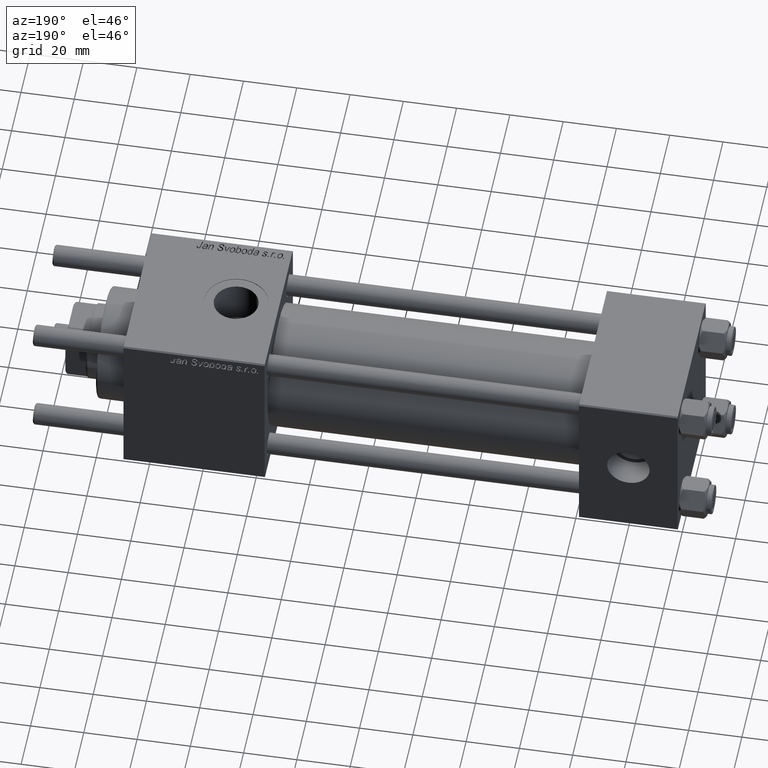
[diagram: clean part render]
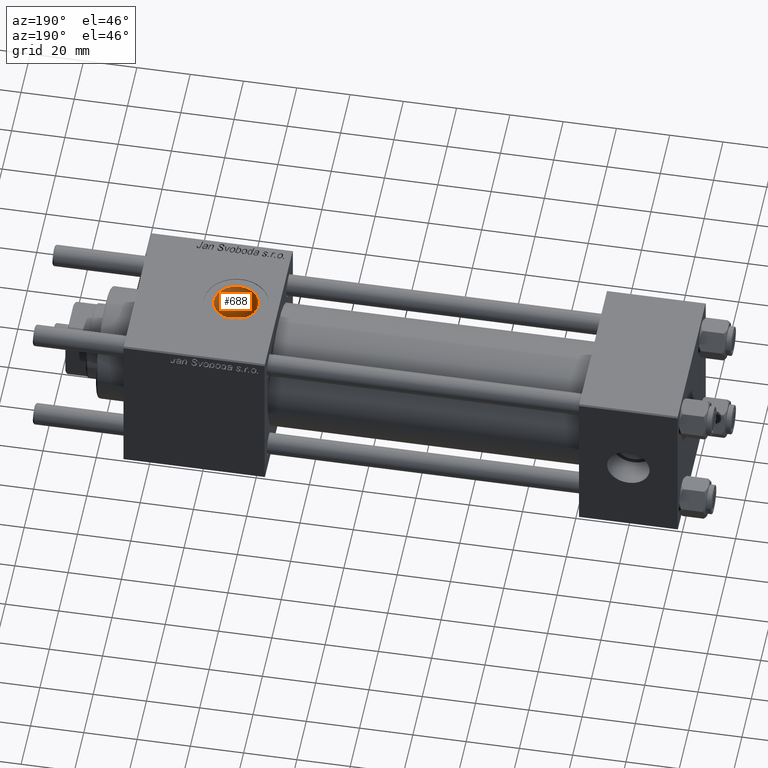
[diagram: same view with one face highlighted and labeled with its STEP entity id]
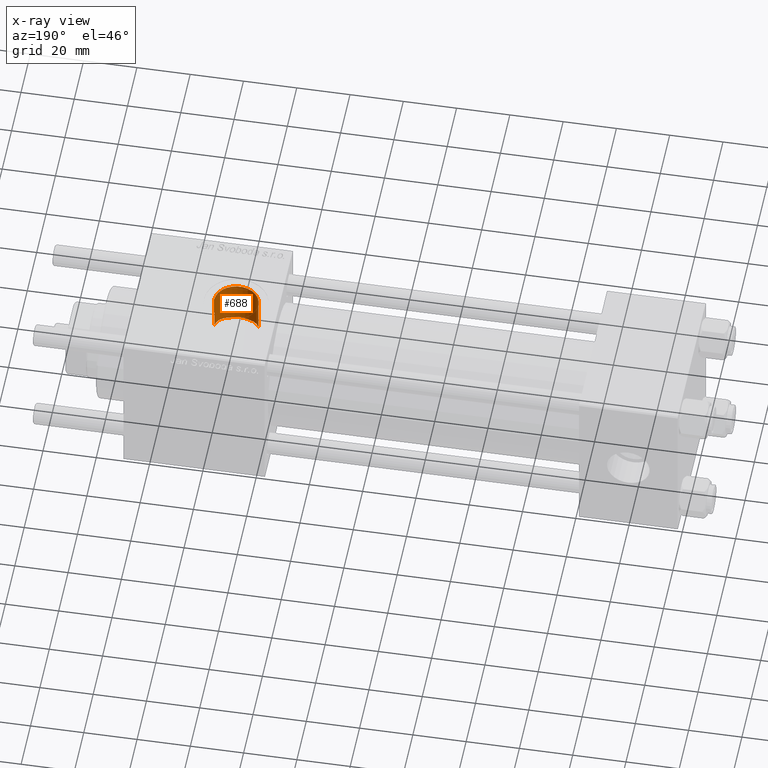
[diagram: x-ray of the same camera — body ghosted, the highlighted face saturated]
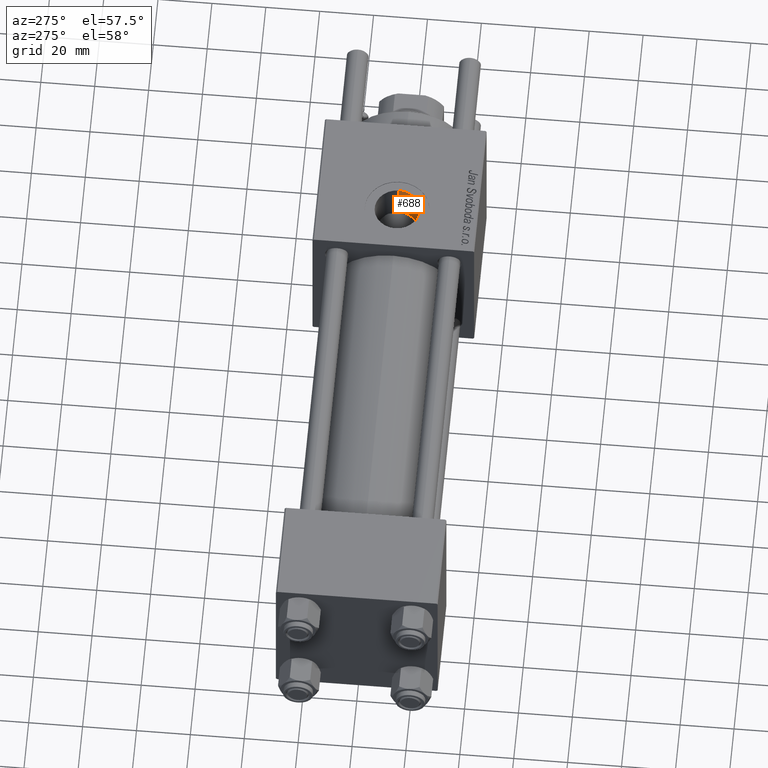
[diagram: same view with one face highlighted and labeled with its STEP entity id]
A machine part, auxiliary view. The second image highlights one B-rep face of the part: STEP entity #688.
The next image is the same camera in x-ray: the body ghosted, the highlighted face saturated — about 0% of this face is hidden behind the body in this view.
A second angle (auxiliary view) of the same face is appended — the face is thin or edge-on in the first view.
In plain terms, the highlighted cylindrical surface (edge-blend (fillet) strip) has radius 8.33 mm, axis along (0, 0, -1).
Its self-contained STEP definition (entity closure, byte-faithful):
#445 = DIRECTION ( 'NONE',  ( 0.000000000000000000, 0.000000000000000000, -1.000000000000000000 ) ) ;
#688 = ADVANCED_FACE ( 'NONE', ( #18609 ), #55318, .F. ) ;
#1222 = ORIENTED_EDGE ( 'NONE', *, *, #5490, .T. ) ;
#1894 = CARTESIAN_POINT ( 'NONE',  ( 162.6699999999999307, -0.3932737753490411214, 15.50000000000000000 ) ) ;
#2631 = ORIENTED_EDGE ( 'NONE', *, *, #47867, .F. ) ;
#3927 = DIRECTION ( 'NONE',  ( -0.000000000000000000, -0.000000000000000000, 1.000000000000000000 ) ) ;
#4413 = CARTESIAN_POINT ( 'NONE',  ( 175.3773959923153427, -7.095733675622464709, 13.78217589145791599 ) ) ;
#4424 = CARTESIAN_POINT ( 'NONE',  ( 179.2999999999999829, -0.7063285354563793028, 15.48389808801388412 ) ) ;
#5490 = EDGE_CURVE ( 'NONE', #11750, #41604, #58550, .T. ) ;
#7713 = CARTESIAN_POINT ( 'NONE',  ( 163.2388751121312396, -3.050237885181524611, 15.20123122413416006 ) ) ;
#8092 = CARTESIAN_POINT ( 'NONE',  ( 170.9999999999999716, -3.469446951953613794E-15, 13.59999999999999076 ) ) ;
#8283 = CARTESIAN_POINT ( 'NONE',  ( 165.1064272110298816, -5.898864207807588578, 14.33631558793831928 ) ) ;
#8576 = CARTESIAN_POINT ( 'NONE',  ( 162.8089720379881555, -1.564748737126392397, 15.42568822226018810 ) ) ;
#8784 = ORIENTED_EDGE ( 'NONE', *, *, #28055, .F. ) ;
#11445 = ORIENTED_EDGE ( 'NONE', *, *, #54844, .T. ) ;
#11577 = CARTESIAN_POINT ( 'NONE',  ( 178.7215032992639578, -3.145651711574434461, 15.18130506059518581 ) ) ;
#11750 = VERTEX_POINT ( 'NONE', #41729 ) ;
#13063 = CARTESIAN_POINT ( 'NONE',  ( 179.3299999999999841, -0.2354428451521246024, 22.50000000000000355 ) ) ;
#13359 = CARTESIAN_POINT ( 'NONE',  ( 179.3200361445782960, -0.4708856903042520914, 22.49630535626710781 ) ) ;
#16228 = B_SPLINE_CURVE_WITH_KNOTS ( 'NONE', 3,
 ( #52144, #37943, #51257, #11577, #38821, #42384, #56010, #21909, #40258, #31082, #30223, #26364, #57458, #4413, #44426, #44712 ),
 .UNSPECIFIED., .F., .F.,
 ( 4, 2, 2, 2, 2, 2, 2, 4 ),
 ( 0.000000000000000000, 0.002164281519507940243, 0.003246422279261909280, 0.004328563039015877884, 0.005410703798769845620, 0.006492844558523814223, 0.007574985318277782827, 0.008657126078031750563 ),
 .UNSPECIFIED. ) ;
#16286 = DIRECTION ( 'NONE',  ( -0.000000000000000000, -0.000000000000000000, -1.000000000000000000 ) ) ;
#16357 = EDGE_CURVE ( 'NONE', #57115, #41604, #49599, .T. ) ;
#16908 = CARTESIAN_POINT ( 'NONE',  ( 165.9411433775952673, -6.660665606237817116, 14.00684504084868109 ) ) ;
#17255 = CARTESIAN_POINT ( 'NONE',  ( 179.3299999999999841, -2.449316168263869821E-15, 29.79999999999999716 ) ) ;
#18609 = FACE_OUTER_BOUND ( 'NONE', #36486, .T. ) ;
#19860 = EDGE_CURVE ( 'NONE', #24168, #55004, #34528, .T. ) ;
#19962 = CARTESIAN_POINT ( 'NONE',  ( 162.6699999999996180, -2.713082222898955649E-14, 15.50000000000020428 ) ) ;
#20568 = CIRCLE ( 'NONE', #27193, 8.330000000000003624 ) ;
#20956 = VERTEX_POINT ( 'NONE', #28558 ) ;
#21011 = CARTESIAN_POINT ( 'NONE',  ( 170.9999999999999716, -3.469446951953613794E-15, 29.79999999999999716 ) ) ;
#21295 = DIRECTION ( 'NONE',  ( 1.000000000000000000, 0.000000000000000000, 0.000000000000000000 ) ) ;
#21748 = B_SPLINE_CURVE_WITH_KNOTS ( 'NONE', 3,
 ( #35575, #13063, #13359, #26119 ),
 .UNSPECIFIED., .F., .F.,
 ( 4, 4 ),
 ( 0.0007063285354563697722, 0.001412657070912751688 ),
 .UNSPECIFIED. ) ;
#21909 = CARTESIAN_POINT ( 'NONE',  ( 177.6814859054846067, -4.986894924185134137, 14.67899340481596582 ) ) ;
#23127 = CIRCLE ( 'NONE', #50558, 8.330000000000003624 ) ;
#24168 = VERTEX_POINT ( 'NONE', #17255 ) ;
#25069 = DIRECTION ( 'NONE',  ( 0.000000000000000000, 0.000000000000000000, -1.000000000000000000 ) ) ;
#25614 = VECTOR ( 'NONE', #445, 1000.000000000000000 ) ;
#25803 = CARTESIAN_POINT ( 'NONE',  ( 163.1052114789570169, -2.685204437881583583, 15.27024604249924877 ) ) ;
#26119 = CARTESIAN_POINT ( 'NONE',  ( 179.2999999999999829, -0.7063285354563793028, 22.48891060056044822 ) ) ;
#26364 = CARTESIAN_POINT ( 'NONE',  ( 176.2310764146981512, -6.491922975836087240, 14.07719584522196321 ) ) ;
#26372 = CARTESIAN_POINT ( 'NONE',  ( 164.3580999100944382, -5.041529647880452991, 14.66044642165735468 ) ) ;
#27193 = AXIS2_PLACEMENT_3D ( 'NONE', #8092, #48966, #43667 ) ;
#27632 = VERTEX_POINT ( 'NONE', #4424 ) ;
#28055 = EDGE_CURVE ( 'NONE', #27632, #44504, #53096, .T. ) ;
#28175 = ORIENTED_EDGE ( 'NONE', *, *, #56268, .F. ) ;
#28558 = CARTESIAN_POINT ( 'NONE',  ( 174.7548501967455081, -7.435724578008537478, 13.59999999999999076 ) ) ;
#28617 = CARTESIAN_POINT ( 'NONE',  ( 179.3299999999999841, 2.755455270027974659E-15, 22.50000000000000355 ) ) ;
#30223 = CARTESIAN_POINT ( 'NONE',  ( 176.7527035097906776, -6.034536163537520537, 14.27924648151578069 ) ) ;
#30231 = CARTESIAN_POINT ( 'NONE',  ( 166.5580543014319517, -7.088758972554064286, 13.78970152060304066 ) ) ;
#31061 = CARTESIAN_POINT ( 'NONE',  ( 162.6699999999996180, -2.713082222898955649E-14, 15.50000000000020428 ) ) ;
#31082 = CARTESIAN_POINT ( 'NONE',  ( 176.9996026483515834, -5.789379398717165337, 14.38096412590978090 ) ) ;
#31091 = CARTESIAN_POINT ( 'NONE',  ( 163.7356139241942401, -4.094008462183722941, 14.95330218343579709 ) ) ;
#33744 = EDGE_CURVE ( 'NONE', #55004, #44504, #21748, .T. ) ;
#34528 = LINE ( 'NONE', #57599, #43647 ) ;
#35541 = CARTESIAN_POINT ( 'NONE',  ( 164.8421395764249553, -5.622509492967806999, 14.44759832893447715 ) ) ;
#35575 = CARTESIAN_POINT ( 'NONE',  ( 179.3299999999999841, 2.755455270027974659E-15, 22.50000000000000355 ) ) ;
#36009 = CARTESIAN_POINT ( 'NONE',  ( 162.6699999999999875, -3.469446951953613794E-15, 29.79999999999999716 ) ) ;
#36486 = EDGE_LOOP ( 'NONE', ( #2631, #55158, #40414, #8784, #11445, #28175, #1222, #43278 ) ) ;
#36677 = DIRECTION ( 'NONE',  ( -1.000000000000000000, 0.000000000000000000, 0.000000000000000000 ) ) ;
#36962 = CARTESIAN_POINT ( 'NONE',  ( 170.9999999999999716, -3.469446951953613794E-15, 52.79999999999999716 ) ) ;
#37943 = CARTESIAN_POINT ( 'NONE',  ( 179.2379181272461039, -1.435846766692447929, 15.45061967576079809 ) ) ;
#38821 = CARTESIAN_POINT ( 'NONE',  ( 178.5780231920916492, -3.476751477085000541, 15.10853693558157040 ) ) ;
#40258 = CARTESIAN_POINT ( 'NONE',  ( 177.4654438345357335, -5.264046141786857369, 14.58145607373055164 ) ) ;
#40414 = ORIENTED_EDGE ( 'NONE', *, *, #33744, .T. ) ;
#41302 = CARTESIAN_POINT ( 'NONE',  ( 162.6699999999999875, -3.469446951953613794E-15, 52.79999999999999716 ) ) ;
#41604 = VERTEX_POINT ( 'NONE', #31061 ) ;
#41729 = CARTESIAN_POINT ( 'NONE',  ( 167.2451498032544634, -7.435724578008537478, 13.59999999999999076 ) ) ;
#42384 = CARTESIAN_POINT ( 'NONE',  ( 178.2557022334253816, -4.107191428842593695, 14.94947048340131346 ) ) ;
#42470 = CARTESIAN_POINT ( 'NONE',  ( 162.6985123997139908, -0.7916320528489063646, 15.48462509825850653 ) ) ;
#43278 = ORIENTED_EDGE ( 'NONE', *, *, #16357, .F. ) ;
#43645 = CARTESIAN_POINT ( 'NONE',  ( 179.2999999999999829, -0.7063285354563793028, 52.79999999999999716 ) ) ;
#43647 = VECTOR ( 'NONE', #25069, 1000.000000000000000 ) ;
#43667 = DIRECTION ( 'NONE',  ( 1.000000000000000000, 0.000000000000000000, 0.000000000000000000 ) ) ;
#44426 = CARTESIAN_POINT ( 'NONE',  ( 175.0719793388102232, -7.275582495151255102, 13.68755679569671457 ) ) ;
#44504 = VERTEX_POINT ( 'NONE', #56266 ) ;
#44712 = CARTESIAN_POINT ( 'NONE',  ( 174.7548501967455081, -7.435724578008537478, 13.59999999999999076 ) ) ;
#47867 = EDGE_CURVE ( 'NONE', #24168, #57115, #23127, .T. ) ;
#47916 = AXIS2_PLACEMENT_3D ( 'NONE', #36962, #49993, #36677 ) ;
#48295 = CARTESIAN_POINT ( 'NONE',  ( 163.5555123538904922, -3.757474466741723251, 15.04203335714862710 ) ) ;
#48966 = DIRECTION ( 'NONE',  ( 0.000000000000000000, 0.000000000000000000, 1.000000000000000000 ) ) ;
#49151 = CARTESIAN_POINT ( 'NONE',  ( 162.8906515532532353, -1.943315834972986433, 15.38227098439063845 ) ) ;
#49599 = LINE ( 'NONE', #41302, #25614 ) ;
#49993 = DIRECTION ( 'NONE',  ( 0.000000000000000000, 0.000000000000000000, -1.000000000000000000 ) ) ;
#50558 = AXIS2_PLACEMENT_3D ( 'NONE', #21011, #16286, #21295 ) ;
#51257 = CARTESIAN_POINT ( 'NONE',  ( 179.0832175232424675, -2.135847849507347185, 15.36739229984356037 ) ) ;
#52144 = CARTESIAN_POINT ( 'NONE',  ( 179.2999999999999829, -0.7063285354563793028, 15.48389808801388412 ) ) ;
#53096 = LINE ( 'NONE', #43645, #56304 ) ;
#53310 = CARTESIAN_POINT ( 'NONE',  ( 167.2451498032544634, -7.435724578008537478, 13.59999999999999076 ) ) ;
#53592 = CARTESIAN_POINT ( 'NONE',  ( 164.1369027071220614, -4.736043274220088861, 14.76252165391442439 ) ) ;
#54844 = EDGE_CURVE ( 'NONE', #27632, #20956, #16228, .T. ) ;
#55004 = VERTEX_POINT ( 'NONE', #28617 ) ;
#55158 = ORIENTED_EDGE ( 'NONE', *, *, #19860, .T. ) ;
#55318 = CYLINDRICAL_SURFACE ( 'NONE', #47916, 8.330000000000003624 ) ;
#56010 = CARTESIAN_POINT ( 'NONE',  ( 178.0762267006179513, -4.408899020335364405, 14.86282536370456953 ) ) ;
#56266 = CARTESIAN_POINT ( 'NONE',  ( 179.2999999999999829, -0.7063285354563793028, 22.48891060056044822 ) ) ;
#56268 = EDGE_CURVE ( 'NONE', #11750, #20956, #20568, .T. ) ;
#56304 = VECTOR ( 'NONE', #3927, 1000.000000000000000 ) ;
#57115 = VERTEX_POINT ( 'NONE', #36009 ) ;
#57458 = CARTESIAN_POINT ( 'NONE',  ( 175.9563515716284314, -6.704148802593592471, 13.97684504926377791 ) ) ;
#57599 = CARTESIAN_POINT ( 'NONE',  ( 179.3299999999999841, -2.449316168263869032E-15, 52.79999999999999716 ) ) ;
#58550 = B_SPLINE_CURVE_WITH_KNOTS ( 'NONE', 3,
 ( #53310, #30231, #16908, #8283, #35541, #26372, #53592, #31091, #48295, #7713, #25803, #49151, #8576, #42470, #1894, #19962 ),
 .UNSPECIFIED., .F., .F.,
 ( 4, 2, 2, 2, 2, 2, 2, 4 ),
 ( 3.218601655210948285E-17, 0.002343612196725074290, 0.003515418295087595173, 0.004687224393450115621, 0.005859030491812635202, 0.007030836590175156518, 0.008202642688537676099, 0.009374448786900198283 ),
 .UNSPECIFIED. ) ;